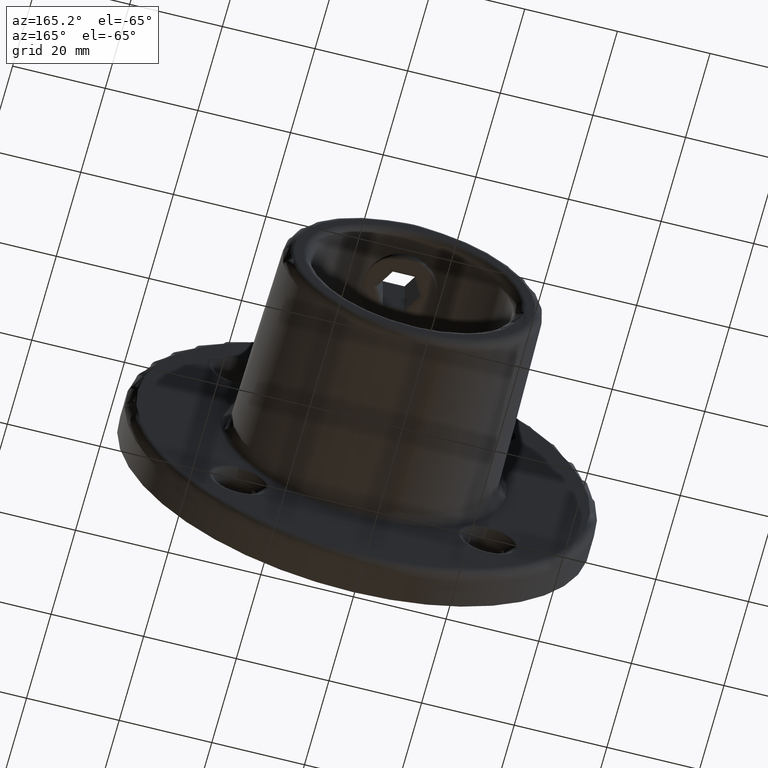
[diagram: clean part render]
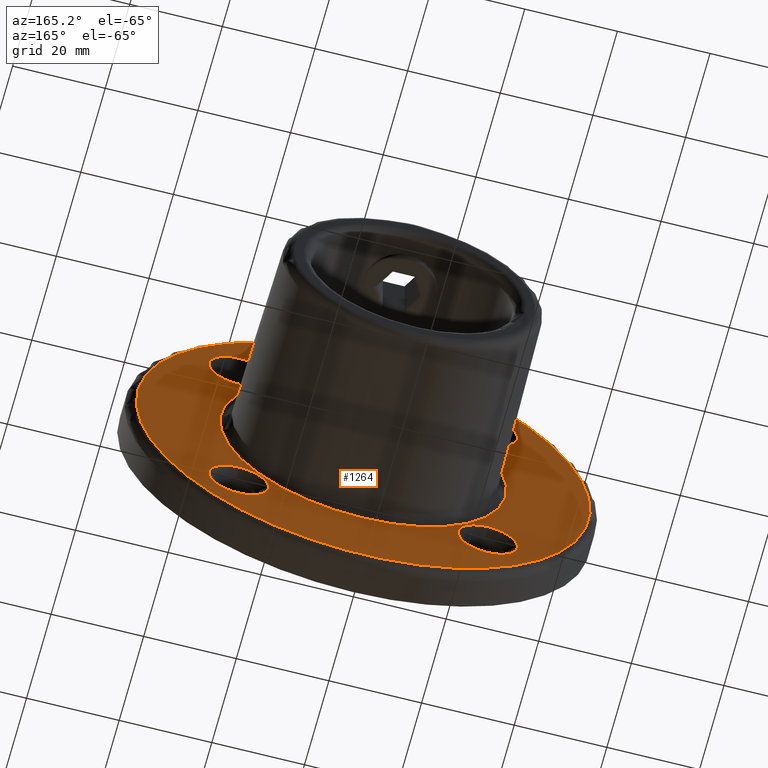
[diagram: same view with one face highlighted and labeled with its STEP entity id]
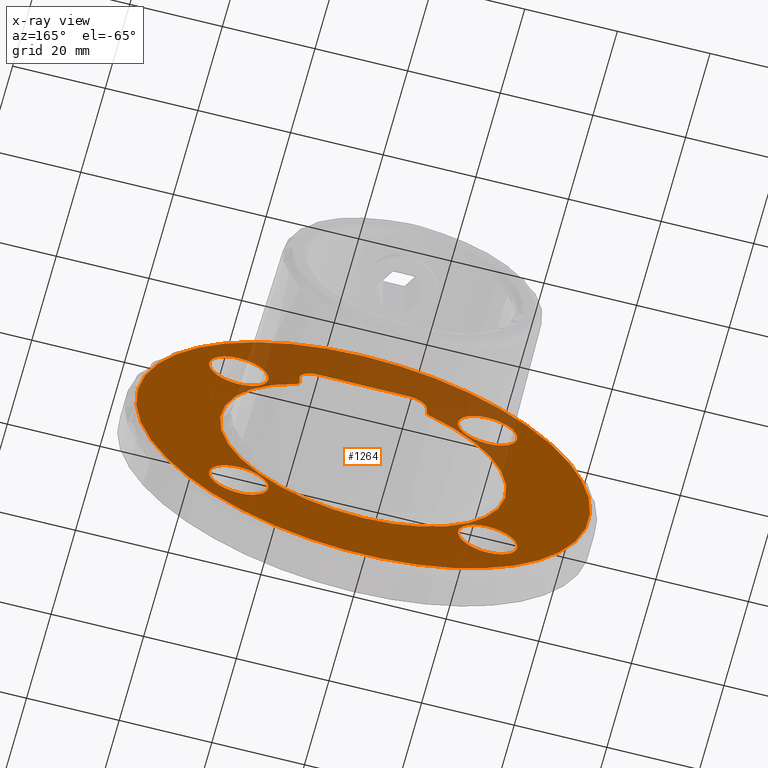
[diagram: x-ray of the same camera — body ghosted, the highlighted face saturated]
A machine part, auxiliary view. The second image highlights one B-rep face of the part: STEP entity #1264.
The next image is the same camera in x-ray: the body ghosted, the highlighted face saturated — about 23% of this face is hidden behind the body in this view.
In plain terms, the highlighted planar face has unit normal (0, 1, 0).
Its self-contained STEP definition (entity closure, byte-faithful):
#32 = CARTESIAN_POINT ( 'NONE',  ( 14.14054945684576658, 8.000000000000000000, 27.54863706754651176 ) ) ;
#69 = EDGE_CURVE ( 'NONE', #2366, #2389, #2887, .T. ) ;
#122 = VERTEX_POINT ( 'NONE', #2468 ) ;
#150 = FACE_BOUND ( 'NONE', #738, .T. ) ;
#220 = CIRCLE ( 'NONE', #1995, 30.95294776548571392 ) ;
#238 = DIRECTION ( 'NONE',  ( 0.000000000000000000, 0.000000000000000000, 1.000000000000000000 ) ) ;
#321 = CARTESIAN_POINT ( 'NONE',  ( 0.000000000000000000, 8.000000000000000000, 48.99999999999999289 ) ) ;
#340 =( BOUNDED_CURVE ( )  B_SPLINE_CURVE ( 3, ( #2763, #691, #2744, #932 ),
 .UNSPECIFIED., .F., .F. ) 
 B_SPLINE_CURVE_WITH_KNOTS ( ( 4, 4 ),
 ( 4.712388980384689674, 6.283185307179586232 ),
 .UNSPECIFIED. ) 
 CURVE ( )  GEOMETRIC_REPRESENTATION_ITEM ( )  RATIONAL_B_SPLINE_CURVE ( ( 1.000000000000000000, 0.8047378541243649375, 0.8047378541243649375, 1.000000000000000000 ) ) 
 REPRESENTATION_ITEM ( '' )  );
#399 = ORIENTED_EDGE ( 'NONE', *, *, #69, .T. ) ;
#428 = AXIS2_PLACEMENT_3D ( 'NONE', #2067, #1148, #1393 ) ;
#461 = EDGE_LOOP ( 'NONE', ( #683, #1879, #1187, #399, #1076, #1364, #933, #2094 ) ) ;
#488 = CARTESIAN_POINT ( 'NONE',  ( -13.75690840015029792, 8.000000000000000000, 28.34088511955215495 ) ) ;
#500 = DIRECTION ( 'NONE',  ( -0.000000000000000000, -1.000000000000000000, -0.000000000000000000 ) ) ;
#553 = EDGE_CURVE ( 'NONE', #122, #2724, #1970, .T. ) ;
#565 = VERTEX_POINT ( 'NONE', #913 ) ;
#571 = CARTESIAN_POINT ( 'NONE',  ( 13.75690840015029792, 8.000000000000000000, 30.50000000000000000 ) ) ;
#621 = FACE_BOUND ( 'NONE', #1438, .T. ) ;
#675 = CARTESIAN_POINT ( 'NONE',  ( -13.81830899084320663, 8.000000000000000000, 27.98440081771945032 ) ) ;
#683 = ORIENTED_EDGE ( 'NONE', *, *, #553, .T. ) ;
#691 = CARTESIAN_POINT ( 'NONE',  ( 12.09664775385284052, 8.000000000000001776, 34.50000000000000000 ) ) ;
#703 = CARTESIAN_POINT ( 'NONE',  ( 14.00770663756651935, 8.000000000000000000, 27.67280610828907328 ) ) ;
#729 = DIRECTION ( 'NONE',  ( 0.000000000000000000, 1.000000000000000000, 0.000000000000000000 ) ) ;
#738 = EDGE_LOOP ( 'NONE', ( #2587 ) ) ;
#753 = EDGE_LOOP ( 'NONE', ( #1029 ) ) ;
#758 = FACE_OUTER_BOUND ( 'NONE', #2521, .T. ) ;
#759 = CIRCLE ( 'NONE', #428, 6.414213562373070054 ) ;
#811 = CARTESIAN_POINT ( 'NONE',  ( 13.75690840015029792, 8.000000000000000000, 28.34088511955215139 ) ) ;
#819 = EDGE_CURVE ( 'NONE', #2194, #2389, #340, .T. ) ;
#834 = DIRECTION ( 'NONE',  ( 0.000000000000000000, 0.000000000000000000, 1.000000000000000000 ) ) ;
#842 = VERTEX_POINT ( 'NONE', #321 ) ;
#850 = AXIS2_PLACEMENT_3D ( 'NONE', #1955, #2420, #1535 ) ;
#872 = VERTEX_POINT ( 'NONE', #1471 ) ;
#898 = CARTESIAN_POINT ( 'NONE',  ( -13.85502584672986437, 8.000000000000000000, 27.89989932372098380 ) ) ;
#913 = CARTESIAN_POINT ( 'NONE',  ( 14.29571498117805639, 8.000000000000000000, 27.45391608768628089 ) ) ;
#932 = CARTESIAN_POINT ( 'NONE',  ( 13.75690840015029792, 8.000000000000000000, 30.50000000000000000 ) ) ;
#933 = ORIENTED_EDGE ( 'NONE', *, *, #2217, .F. ) ;
#963 = VERTEX_POINT ( 'NONE', #1789 ) ;
#1029 = ORIENTED_EDGE ( 'NONE', *, *, #2230, .T. ) ;
#1038 = CIRCLE ( 'NONE', #1362, 6.414213562373073607 ) ;
#1047 =( BOUNDED_CURVE ( )  B_SPLINE_CURVE ( 3, ( #2271, #1398, #2052, #2515 ),
 .UNSPECIFIED., .F., .F. ) 
 B_SPLINE_CURVE_WITH_KNOTS ( ( 4, 4 ),
 ( 3.141592653589793116, 4.712388980384689674 ),
 .UNSPECIFIED. ) 
 CURVE ( )  GEOMETRIC_REPRESENTATION_ITEM ( )  RATIONAL_B_SPLINE_CURVE ( ( 1.000000000000000000, 0.8047378541243649375, 0.8047378541243649375, 1.000000000000000000 ) ) 
 REPRESENTATION_ITEM ( '' )  );
#1076 = ORIENTED_EDGE ( 'NONE', *, *, #819, .F. ) ;
#1094 = CIRCLE ( 'NONE', #1139, 6.414213562373073607 ) ;
#1102 = DIRECTION ( 'NONE',  ( 0.000000000000000000, 1.000000000000000000, 0.000000000000000000 ) ) ;
#1108 = DIRECTION ( 'NONE',  ( -0.000000000000000000, -1.000000000000000000, -0.000000000000000000 ) ) ;
#1116 = VECTOR ( 'NONE', #2362, 1000.000000000000000 ) ;
#1123 = CARTESIAN_POINT ( 'NONE',  ( -13.99593266795647573, 8.000000000000001776, 27.66780246103119012 ) ) ;
#1139 = AXIS2_PLACEMENT_3D ( 'NONE', #1644, #500, #1675 ) ;
#1142 = CIRCLE ( 'NONE', #2659, 48.99999999999999289 ) ;
#1148 = DIRECTION ( 'NONE',  ( -0.000000000000000000, -1.000000000000000000, -0.000000000000000000 ) ) ;
#1161 = CARTESIAN_POINT ( 'NONE',  ( -14.29571498117805461, 8.000000000000000000, 27.45391608768628089 ) ) ;
#1181 = EDGE_LOOP ( 'NONE', ( #2229 ) ) ;
#1187 = ORIENTED_EDGE ( 'NONE', *, *, #2578, .T. ) ;
#1255 = EDGE_CURVE ( 'NONE', #2898, #2898, #1038, .T. ) ;
#1264 = ADVANCED_FACE ( 'NONE', ( #621, #150, #1660, #1520, #2347, #758 ), #2888, .T. ) ;
#1268 = AXIS2_PLACEMENT_3D ( 'NONE', #2663, #1102, #2693 ) ;
#1362 = AXIS2_PLACEMENT_3D ( 'NONE', #1986, #1108, #2450 ) ;
#1364 = ORIENTED_EDGE ( 'NONE', *, *, #1676, .T. ) ;
#1366 = CARTESIAN_POINT ( 'NONE',  ( -14.29571498117805461, 8.000000000000000000, 27.45391608768628089 ) ) ;
#1380 = CARTESIAN_POINT ( 'NONE',  ( -13.75690840015030147, 8.000000000000000000, 28.24914834653920437 ) ) ;
#1393 = DIRECTION ( 'NONE',  ( 0.000000000000000000, 0.000000000000000000, 1.000000000000000000 ) ) ;
#1398 = CARTESIAN_POINT ( 'NONE',  ( -13.75690840015029970, 8.000000000000001776, 32.84314575050761675 ) ) ;
#1422 = DIRECTION ( 'NONE',  ( 0.000000000000000000, 0.000000000000000000, -1.000000000000000000 ) ) ;
#1438 = EDGE_LOOP ( 'NONE', ( #1776 ) ) ;
#1471 = CARTESIAN_POINT ( 'NONE',  ( 26.87005768508880266, 8.000000000000000000, 33.28427124746186649 ) ) ;
#1520 = FACE_BOUND ( 'NONE', #1181, .T. ) ;
#1521 = CARTESIAN_POINT ( 'NONE',  ( 0.000000000000000000, 8.000000000000000000, 0.000000000000000000 ) ) ;
#1528 = CIRCLE ( 'NONE', #850, 6.414213562373115352 ) ;
#1535 = DIRECTION ( 'NONE',  ( 0.000000000000000000, 0.000000000000000000, 1.000000000000000000 ) ) ;
#1538 = EDGE_CURVE ( 'NONE', #1765, #1765, #1094, .T. ) ;
#1574 = CARTESIAN_POINT ( 'NONE',  ( 9.748684630784650196, 8.000000000000000000, 34.50000000000000000 ) ) ;
#1578 = EDGE_CURVE ( 'NONE', #2920, #122, #1737, .T. ) ;
#1609 = CARTESIAN_POINT ( 'NONE',  ( 0.000000000000000000, 8.000000000000000000, 0.000000000000000000 ) ) ;
#1622 = CARTESIAN_POINT ( 'NONE',  ( 14.21434843266256109, 8.000000000000000000, 27.49628501541473113 ) ) ;
#1644 = CARTESIAN_POINT ( 'NONE',  ( -26.87005768508880266, 8.000000000000000000, 26.87005768508881332 ) ) ;
#1660 = FACE_BOUND ( 'NONE', #753, .T. ) ;
#1671 = VECTOR ( 'NONE', #1422, 1000.000000000000000 ) ;
#1675 = DIRECTION ( 'NONE',  ( 0.000000000000000000, 0.000000000000000000, 1.000000000000000000 ) ) ;
#1676 = EDGE_CURVE ( 'NONE', #2194, #963, #1696, .T. ) ;
#1696 = LINE ( 'NONE', #2606, #1116 ) ;
#1737 = LINE ( 'NONE', #2765, #1671 ) ;
#1765 = VERTEX_POINT ( 'NONE', #1906 ) ;
#1776 = ORIENTED_EDGE ( 'NONE', *, *, #1822, .T. ) ;
#1789 = CARTESIAN_POINT ( 'NONE',  ( -9.748684630784650196, 8.000000000000000000, 34.50000000000000000 ) ) ;
#1813 = EDGE_CURVE ( 'NONE', #2724, #565, #220, .T. ) ;
#1822 = EDGE_CURVE ( 'NONE', #2676, #2676, #1528, .T. ) ;
#1826 = CARTESIAN_POINT ( 'NONE',  ( 13.94959041658589705, 8.000000000000000000, 27.74432131616093500 ) ) ;
#1866 = ORIENTED_EDGE ( 'NONE', *, *, #2204, .T. ) ;
#1879 = ORIENTED_EDGE ( 'NONE', *, *, #1813, .T. ) ;
#1906 = CARTESIAN_POINT ( 'NONE',  ( -26.87005768508880266, 8.000000000000000000, 33.28427124746188781 ) ) ;
#1955 = CARTESIAN_POINT ( 'NONE',  ( -26.87005768508880266, 8.000000000000000000, -26.87005768508880266 ) ) ;
#1958 = VECTOR ( 'NONE', #2361, 1000.000000000000000 ) ;
#1970 = B_SPLINE_CURVE_WITH_KNOTS ( 'NONE', 3,
 ( #488, #1380, #2747, #675, #898, #1123, #2039, #1366 ),
 .UNSPECIFIED., .F., .F.,
 ( 4, 2, 2, 4 ),
 ( 0.000000000000000000, 0.0002712996565880192710, 0.0005425993131760385420, 0.001085198626352077084 ),
 .UNSPECIFIED. ) ;
#1986 = CARTESIAN_POINT ( 'NONE',  ( 26.87005768508880266, 8.000000000000000000, -26.87005768508881332 ) ) ;
#1995 = AXIS2_PLACEMENT_3D ( 'NONE', #1521, #2191, #834 ) ;
#2039 = CARTESIAN_POINT ( 'NONE',  ( -14.13298972990095237, 8.000000000000000000, 27.53864985772740681 ) ) ;
#2052 = CARTESIAN_POINT ( 'NONE',  ( -12.09664775385284052, 8.000000000000001776, 34.50000000000000000 ) ) ;
#2067 = CARTESIAN_POINT ( 'NONE',  ( 26.87005768508880266, 8.000000000000000000, 26.87005768508879910 ) ) ;
#2094 = ORIENTED_EDGE ( 'NONE', *, *, #1578, .T. ) ;
#2127 = CARTESIAN_POINT ( 'NONE',  ( 26.87005768508880266, 8.000000000000000000, -20.45584412271574237 ) ) ;
#2191 = DIRECTION ( 'NONE',  ( -0.000000000000000000, -1.000000000000000000, -0.000000000000000000 ) ) ;
#2194 = VERTEX_POINT ( 'NONE', #1574 ) ;
#2204 = EDGE_CURVE ( 'NONE', #842, #842, #1142, .T. ) ;
#2217 = EDGE_CURVE ( 'NONE', #2920, #963, #1047, .T. ) ;
#2229 = ORIENTED_EDGE ( 'NONE', *, *, #1538, .T. ) ;
#2230 = EDGE_CURVE ( 'NONE', #872, #872, #759, .T. ) ;
#2271 = CARTESIAN_POINT ( 'NONE',  ( -13.75690840015029792, 8.000000000000000000, 30.50000000000000000 ) ) ;
#2347 = FACE_BOUND ( 'NONE', #461, .T. ) ;
#2361 = DIRECTION ( 'NONE',  ( 0.000000000000000000, -0.000000000000000000, 1.000000000000000000 ) ) ;
#2362 = DIRECTION ( 'NONE',  ( -1.000000000000000000, 0.000000000000000000, -0.000000000000000000 ) ) ;
#2366 = VERTEX_POINT ( 'NONE', #2811 ) ;
#2389 = VERTEX_POINT ( 'NONE', #571 ) ;
#2420 = DIRECTION ( 'NONE',  ( -0.000000000000000000, -1.000000000000000000, -0.000000000000000000 ) ) ;
#2450 = DIRECTION ( 'NONE',  ( 0.000000000000000000, 0.000000000000000000, 1.000000000000000000 ) ) ;
#2468 = CARTESIAN_POINT ( 'NONE',  ( -13.75690840015029792, 8.000000000000000000, 28.34088511955215495 ) ) ;
#2503 = CARTESIAN_POINT ( 'NONE',  ( -13.75690840015029792, 8.000000000000000000, 30.50000000000000000 ) ) ;
#2511 = CARTESIAN_POINT ( 'NONE',  ( 14.29571498117805639, 8.000000000000000000, 27.45391608768628089 ) ) ;
#2515 = CARTESIAN_POINT ( 'NONE',  ( -9.748684630784650196, 8.000000000000000000, 34.50000000000000000 ) ) ;
#2521 = EDGE_LOOP ( 'NONE', ( #1866 ) ) ;
#2562 = CARTESIAN_POINT ( 'NONE',  ( 13.75690840015029792, 8.000000000000000000, 0.000000000000000000 ) ) ;
#2578 = EDGE_CURVE ( 'NONE', #565, #2366, #2875, .T. ) ;
#2587 = ORIENTED_EDGE ( 'NONE', *, *, #1255, .T. ) ;
#2596 = CARTESIAN_POINT ( 'NONE',  ( -26.87005768508880266, 8.000000000000000000, -20.45584412271568553 ) ) ;
#2606 = CARTESIAN_POINT ( 'NONE',  ( -11.88111037413809257, 8.000000000000000000, 34.50000000000000000 ) ) ;
#2659 = AXIS2_PLACEMENT_3D ( 'NONE', #1609, #729, #238 ) ;
#2663 = CARTESIAN_POINT ( 'NONE',  ( 0.000000000000000000, 8.000000000000000000, 0.000000000000000000 ) ) ;
#2676 = VERTEX_POINT ( 'NONE', #2596 ) ;
#2693 = DIRECTION ( 'NONE',  ( 0.000000000000000000, -0.000000000000000000, 1.000000000000000000 ) ) ;
#2724 = VERTEX_POINT ( 'NONE', #1161 ) ;
#2728 = CARTESIAN_POINT ( 'NONE',  ( 13.80845168835228165, 8.000000000000000000, 27.97624691672360342 ) ) ;
#2744 = CARTESIAN_POINT ( 'NONE',  ( 13.75690840015029970, 8.000000000000001776, 32.84314575050761675 ) ) ;
#2747 = CARTESIAN_POINT ( 'NONE',  ( -13.76932303320069373, 8.000000000000000000, 28.15952705319490690 ) ) ;
#2763 = CARTESIAN_POINT ( 'NONE',  ( 9.748684630784650196, 8.000000000000000000, 34.50000000000000000 ) ) ;
#2765 = CARTESIAN_POINT ( 'NONE',  ( -13.75690840015029792, 8.000000000000000000, 0.000000000000000000 ) ) ;
#2811 = CARTESIAN_POINT ( 'NONE',  ( 13.75690840015029792, 8.000000000000000000, 28.34088511955215139 ) ) ;
#2830 = CARTESIAN_POINT ( 'NONE',  ( 13.75690840015030680, 8.000000000000000000, 28.15740229748259793 ) ) ;
#2875 = B_SPLINE_CURVE_WITH_KNOTS ( 'NONE', 3,
 ( #2511, #1622, #32, #703, #1826, #2728, #2830, #811 ),
 .UNSPECIFIED., .F., .F.,
 ( 4, 2, 2, 4 ),
 ( 0.000000000000000000, 0.0002713108194812356125, 0.0005426216389624712250, 0.001085243277924951340 ),
 .UNSPECIFIED. ) ;
#2887 = LINE ( 'NONE', #2562, #1958 ) ;
#2888 = PLANE ( 'NONE',  #1268 ) ;
#2898 = VERTEX_POINT ( 'NONE', #2127 ) ;
#2920 = VERTEX_POINT ( 'NONE', #2503 ) ;